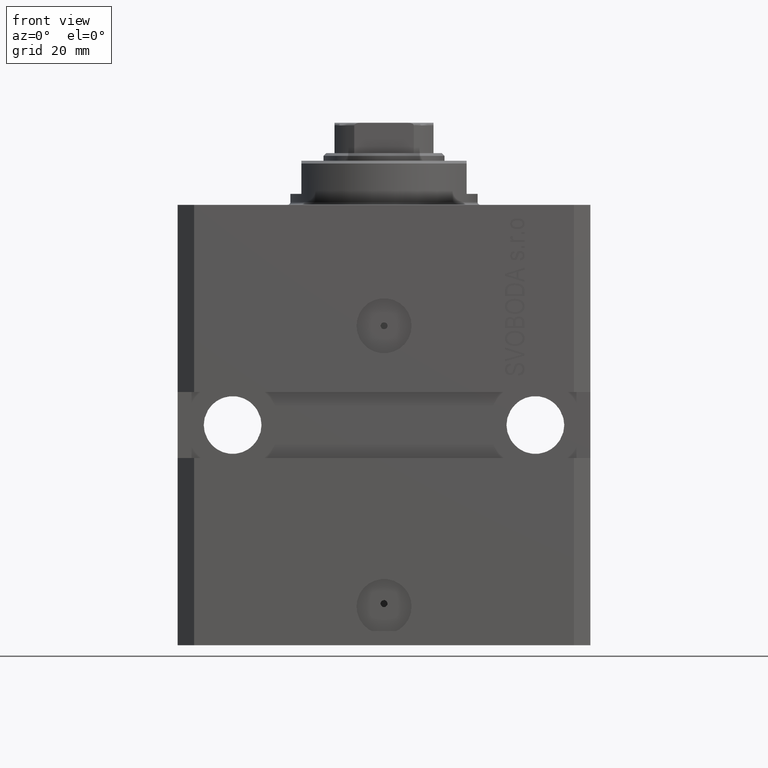
[diagram: clean part render]
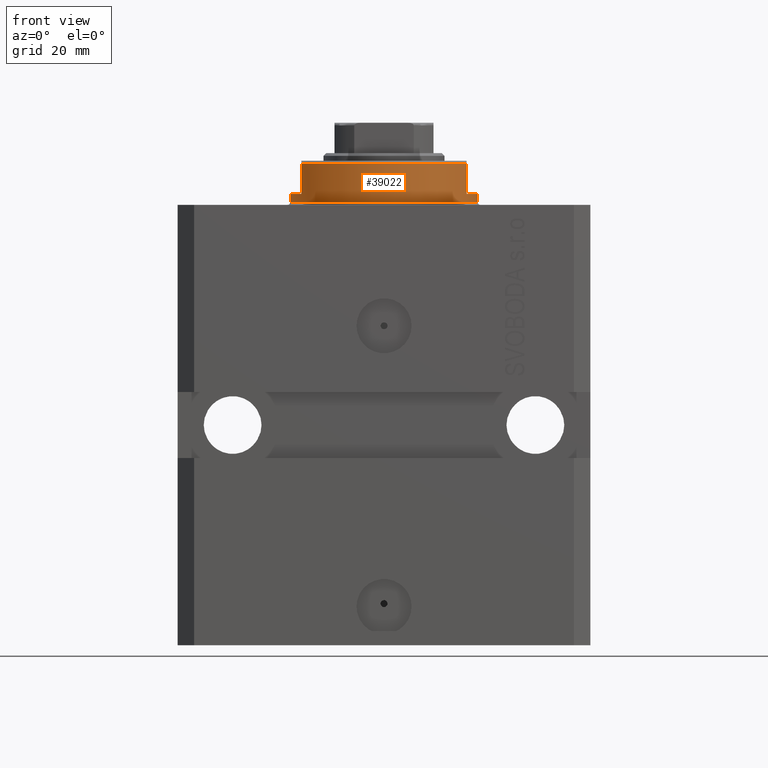
[diagram: same view with one face highlighted and labeled with its STEP entity id]
A machine part, front view. The second image highlights one B-rep face of the part: STEP entity #39022.
In plain terms, the highlighted cylindrical surface (partial cylindrical patch) has radius 17 mm, axis along (0, 0, -1).
Its self-contained STEP definition (entity closure, byte-faithful):
#497 = DIRECTION ( 'NONE',  ( 1.000000000000000000, 0.000000000000000000, 0.000000000000000000 ) ) ;
#2062 = ORIENTED_EDGE ( 'NONE', *, *, #36497, .F. ) ;
#3090 = CIRCLE ( 'NONE', #42243, 17.00000000000000000 ) ;
#5034 = CARTESIAN_POINT ( 'NONE',  ( 17.00000000000000000, 0.000000000000000000, -2.000000000000000000 ) ) ;
#5989 = EDGE_CURVE ( 'NONE', #36073, #42524, #44139, .T. ) ;
#6470 = DIRECTION ( 'NONE',  ( 0.000000000000000000, 0.000000000000000000, -1.000000000000000000 ) ) ;
#6937 = CARTESIAN_POINT ( 'NONE',  ( 14.99999999999999645, -8.000000000000003553, -2.000000000000000000 ) ) ;
#7460 = EDGE_CURVE ( 'NONE', #22206, #38457, #29974, .T. ) ;
#7547 = CIRCLE ( 'NONE', #42433, 17.00000000000000000 ) ;
#7843 = FACE_OUTER_BOUND ( 'NONE', #15986, .T. ) ;
#8201 = EDGE_CURVE ( 'NONE', #26869, #38457, #33407, .T. ) ;
#9938 = DIRECTION ( 'NONE',  ( 0.000000000000000000, 0.000000000000000000, -1.000000000000000000 ) ) ;
#11249 = CARTESIAN_POINT ( 'NONE',  ( 0.000000000000000000, 0.000000000000000000, -0.5000000000000004441 ) ) ;
#12855 = ORIENTED_EDGE ( 'NONE', *, *, #29338, .F. ) ;
#13242 = CARTESIAN_POINT ( 'NONE',  ( 17.00000000000000000, 0.000000000000000000, -0.5000000000000004441 ) ) ;
#13294 = EDGE_CURVE ( 'NONE', #36915, #28594, #3090, .T. ) ;
#13346 = DIRECTION ( 'NONE',  ( -1.000000000000000000, 0.000000000000000000, 0.000000000000000000 ) ) ;
#13542 = CARTESIAN_POINT ( 'NONE',  ( -17.00000000000000000, 2.081899558550500280E-15, -0.5000000000000004441 ) ) ;
#14037 = AXIS2_PLACEMENT_3D ( 'NONE', #34158, #14752, #497 ) ;
#14080 = CARTESIAN_POINT ( 'NONE',  ( 17.00000000000000000, 0.000000000000000000, -8.000000000000000000 ) ) ;
#14752 = DIRECTION ( 'NONE',  ( -0.000000000000000000, -0.000000000000000000, 1.000000000000000000 ) ) ;
#15000 = EDGE_CURVE ( 'NONE', #42524, #29900, #23761, .T. ) ;
#15986 = EDGE_LOOP ( 'NONE', ( #33698, #2062, #17401, #27364, #12855, #41493, #36830, #34927 ) ) ;
#17401 = ORIENTED_EDGE ( 'NONE', *, *, #5989, .T. ) ;
#18230 = DIRECTION ( 'NONE',  ( 0.000000000000000000, 0.000000000000000000, -1.000000000000000000 ) ) ;
#19313 = VECTOR ( 'NONE', #33184, 1000.000000000000000 ) ;
#19665 = EDGE_CURVE ( 'NONE', #36915, #22206, #24313, .T. ) ;
#20475 = VECTOR ( 'NONE', #9938, 1000.000000000000000 ) ;
#22206 = VERTEX_POINT ( 'NONE', #13242 ) ;
#22959 = AXIS2_PLACEMENT_3D ( 'NONE', #43898, #26930, #13346 ) ;
#23761 = CIRCLE ( 'NONE', #22959, 17.00000000000000000 ) ;
#24313 = LINE ( 'NONE', #14080, #30920 ) ;
#24548 = CYLINDRICAL_SURFACE ( 'NONE', #14037, 17.00000000000000000 ) ;
#25490 = DIRECTION ( 'NONE',  ( -0.000000000000000000, -0.000000000000000000, -1.000000000000000000 ) ) ;
#26869 = VERTEX_POINT ( 'NONE', #39267 ) ;
#26886 = CARTESIAN_POINT ( 'NONE',  ( 15.00000000000000000, -8.000000000000001776, -8.000000000000000000 ) ) ;
#26930 = DIRECTION ( 'NONE',  ( 0.000000000000000000, 0.000000000000000000, 1.000000000000000000 ) ) ;
#27003 = DIRECTION ( 'NONE',  ( -0.000000000000000000, -0.000000000000000000, 1.000000000000000000 ) ) ;
#27073 = DIRECTION ( 'NONE',  ( 0.000000000000000000, 0.000000000000000000, -1.000000000000000000 ) ) ;
#27364 = ORIENTED_EDGE ( 'NONE', *, *, #15000, .T. ) ;
#28594 = VERTEX_POINT ( 'NONE', #6937 ) ;
#29338 = EDGE_CURVE ( 'NONE', #28594, #29900, #41383, .T. ) ;
#29900 = VERTEX_POINT ( 'NONE', #35402 ) ;
#29974 = CIRCLE ( 'NONE', #36407, 17.00000000000000000 ) ;
#30642 = CARTESIAN_POINT ( 'NONE',  ( 0.000000000000000000, 0.000000000000000000, -2.000000000000000000 ) ) ;
#30920 = VECTOR ( 'NONE', #27003, 1000.000000000000000 ) ;
#33184 = DIRECTION ( 'NONE',  ( -0.000000000000000000, -0.000000000000000000, 1.000000000000000000 ) ) ;
#33407 = LINE ( 'NONE', #37410, #19313 ) ;
#33651 = CARTESIAN_POINT ( 'NONE',  ( -15.00000000000000000, -8.000000000000001776, -8.000000000000000000 ) ) ;
#33698 = ORIENTED_EDGE ( 'NONE', *, *, #8201, .F. ) ;
#34158 = CARTESIAN_POINT ( 'NONE',  ( 0.000000000000000000, 0.000000000000000000, -8.000000000000000000 ) ) ;
#34747 = CARTESIAN_POINT ( 'NONE',  ( 0.000000000000000000, 0.000000000000000000, -2.000000000000000000 ) ) ;
#34927 = ORIENTED_EDGE ( 'NONE', *, *, #7460, .T. ) ;
#35402 = CARTESIAN_POINT ( 'NONE',  ( 15.00000000000000000, -8.000000000000001776, -7.500000000000013323 ) ) ;
#35746 = DIRECTION ( 'NONE',  ( 1.000000000000000000, 0.000000000000000000, 0.000000000000000000 ) ) ;
#36073 = VERTEX_POINT ( 'NONE', #40389 ) ;
#36407 = AXIS2_PLACEMENT_3D ( 'NONE', #11249, #25490, #35746 ) ;
#36497 = EDGE_CURVE ( 'NONE', #36073, #26869, #7547, .T. ) ;
#36830 = ORIENTED_EDGE ( 'NONE', *, *, #19665, .T. ) ;
#36915 = VERTEX_POINT ( 'NONE', #5034 ) ;
#37410 = CARTESIAN_POINT ( 'NONE',  ( -17.00000000000000000, 2.081899558550500280E-15, -8.000000000000000000 ) ) ;
#38457 = VERTEX_POINT ( 'NONE', #13542 ) ;
#39022 = ADVANCED_FACE ( 'NONE', ( #7843 ), #24548, .T. ) ;
#39180 = VECTOR ( 'NONE', #6470, 1000.000000000000000 ) ;
#39267 = CARTESIAN_POINT ( 'NONE',  ( -17.00000000000000000, 2.081899558550500280E-15, -2.000000000000000000 ) ) ;
#40082 = CARTESIAN_POINT ( 'NONE',  ( -15.00000000000000000, -8.000000000000001776, -7.500000000000014211 ) ) ;
#40389 = CARTESIAN_POINT ( 'NONE',  ( -14.99999999999999645, -8.000000000000003553, -2.000000000000000000 ) ) ;
#41383 = LINE ( 'NONE', #26886, #20475 ) ;
#41493 = ORIENTED_EDGE ( 'NONE', *, *, #13294, .F. ) ;
#41662 = DIRECTION ( 'NONE',  ( -1.000000000000000000, 0.000000000000000000, 0.000000000000000000 ) ) ;
#42243 = AXIS2_PLACEMENT_3D ( 'NONE', #30642, #27073, #43827 ) ;
#42433 = AXIS2_PLACEMENT_3D ( 'NONE', #34747, #18230, #41662 ) ;
#42524 = VERTEX_POINT ( 'NONE', #40082 ) ;
#43827 = DIRECTION ( 'NONE',  ( -1.000000000000000000, 0.000000000000000000, 0.000000000000000000 ) ) ;
#43898 = CARTESIAN_POINT ( 'NONE',  ( 0.000000000000000000, 0.000000000000000000, -7.500000000000013323 ) ) ;
#44139 = LINE ( 'NONE', #33651, #39180 ) ;